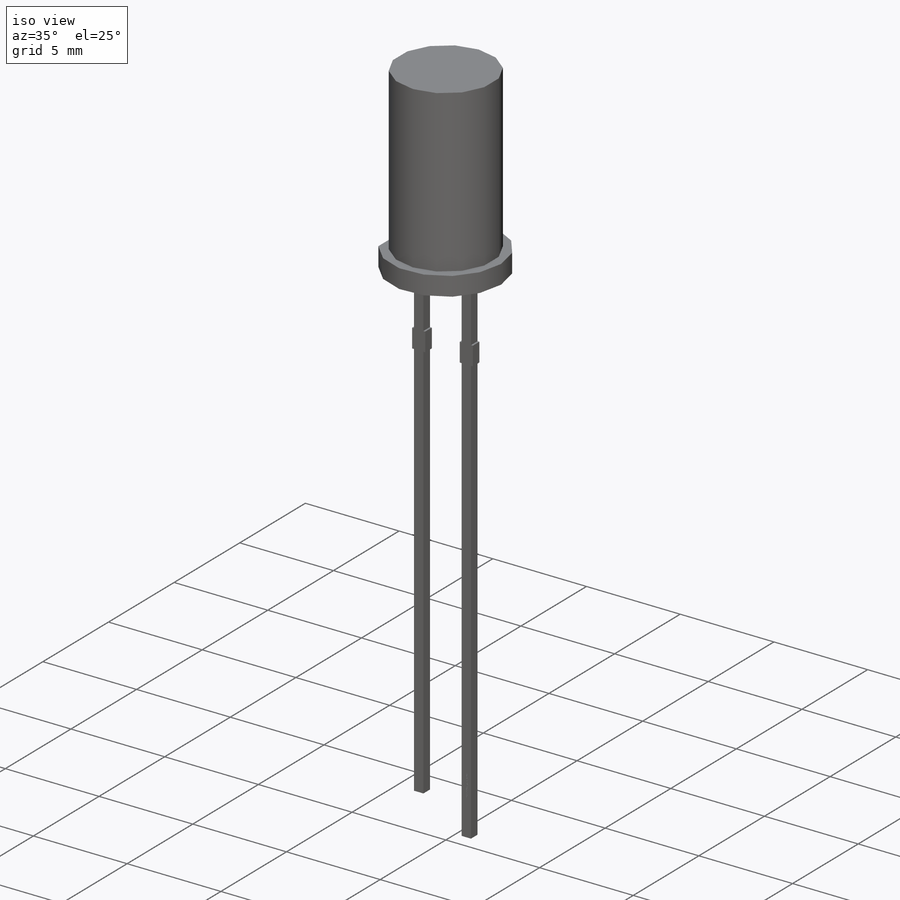
[diagram: iso view]
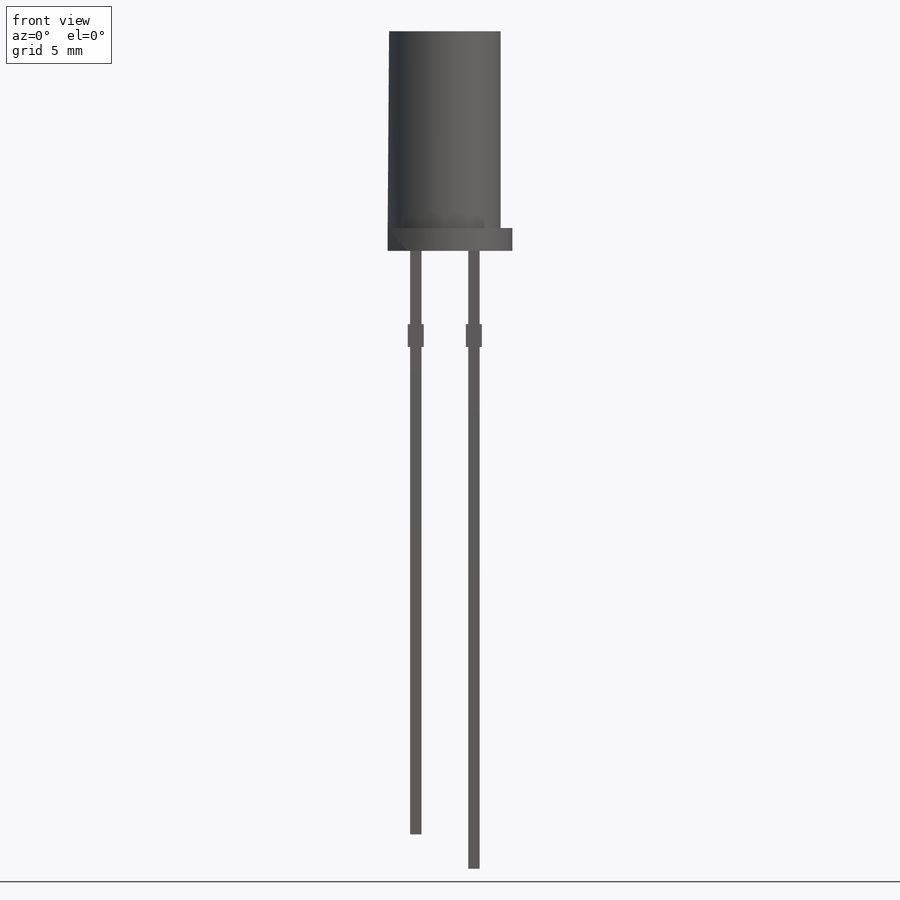
[diagram: front view]
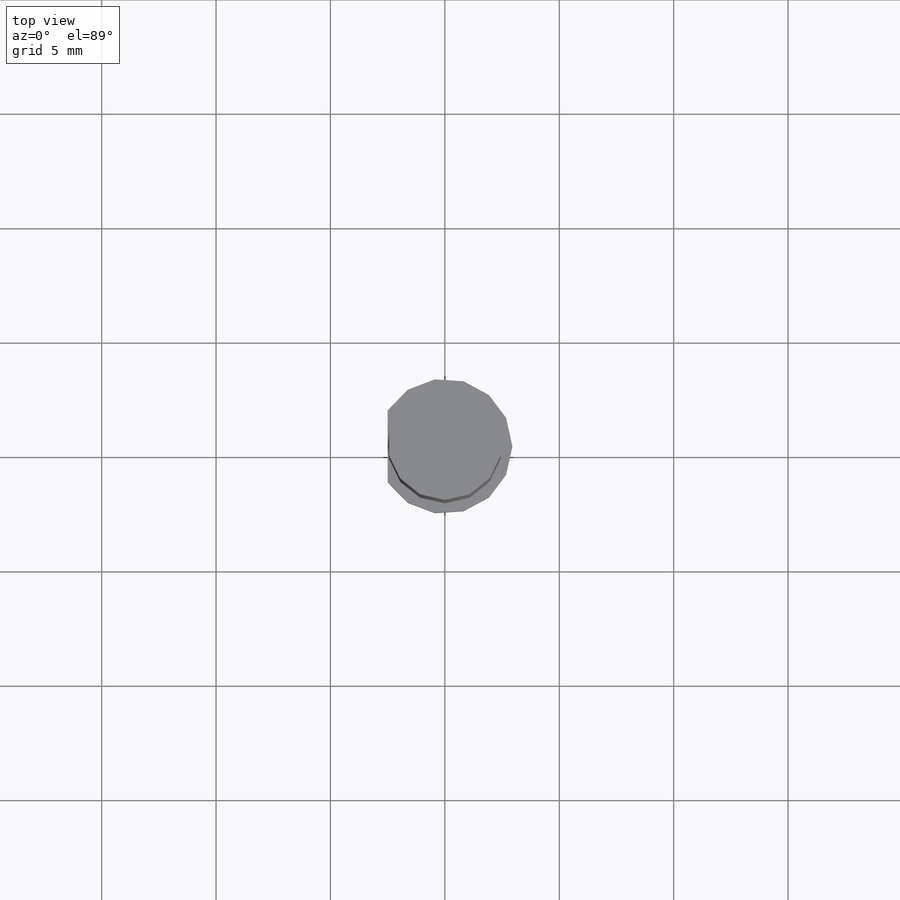
[diagram: top view]
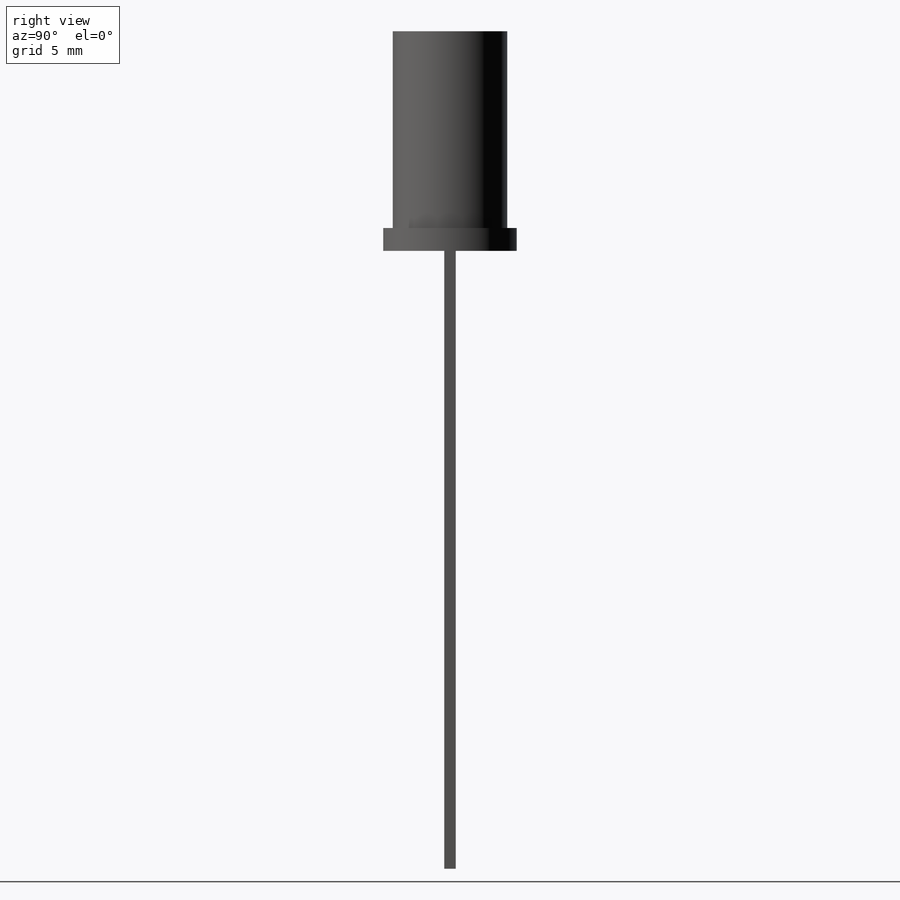
[diagram: right view]
SOLIDWORKS PART (.sldprt)
format: sldprt  version: not decoded by parser v0  size: 504,320 bytes
history: native  units: mm
features: sketch x4, extrude x2, material x1, revolve x1, cut_extrude x1 (+13 scaffold rows collapsed)
feature tree (22):
  scaffold x13  (default folders/planes/origin — collapsed)
  material  "Material <not specified>"
  sketch  "Sketch2"  dims[c1.D1=3.5mm c1.D2=5.9mm c2.D1=5.0mm]
  extrude  "Extrude2"  Depth=1mm
  sketch  "Sketch3"  dims[c1.D1=1.5mm c1.D2=5.2mm c1.D3=27.0mm c1.D4=1.5mm c1.D5=0.5mm c1.D6=2.54mm c1.D7=1.0mm c1.D8=0.7mm c1.D9=5.0mm c2.D1=1.45mm c2.D2=~1.248812mm c3.D2=49.0deg c3.D10=0.2mm c3.D11=8.6mm c3.D12=2.5mm c4.D2=12.8mm]
  revolve  "Revolve1"  Angle=360deg
  extrude  "Extrude4"  [1 undecoded]
  sketch  "Sketch3<3>"  dims[D1=0.5mm]
  sketch  "Sketch4"  dims[D1=5.0mm]
  cut_extrude  "Cut-Extrude1"  Depth=0.01mm
decode coverage: 7 of 8 modeling features carry decoded parameters
note: ~ marks probable driven/reference dimensions
note: 1 parameter value undecoded
note: suppression state not decoded; provenance and decode notes live in map.json
